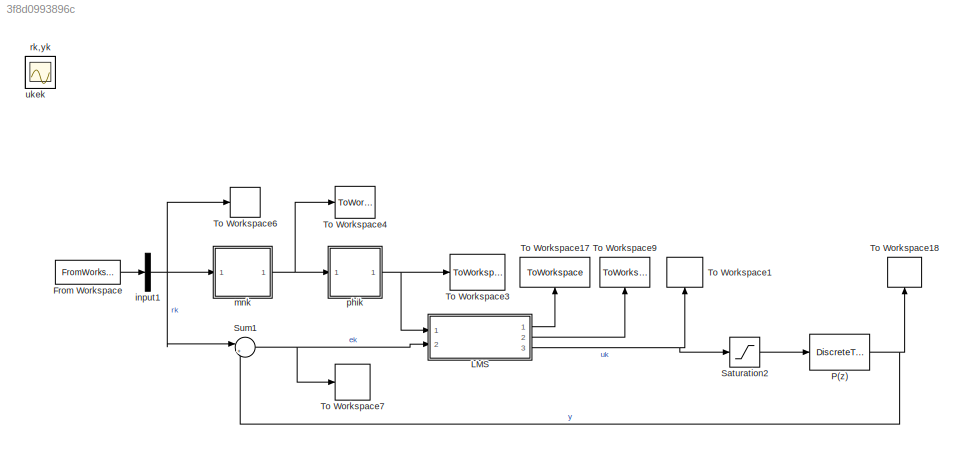
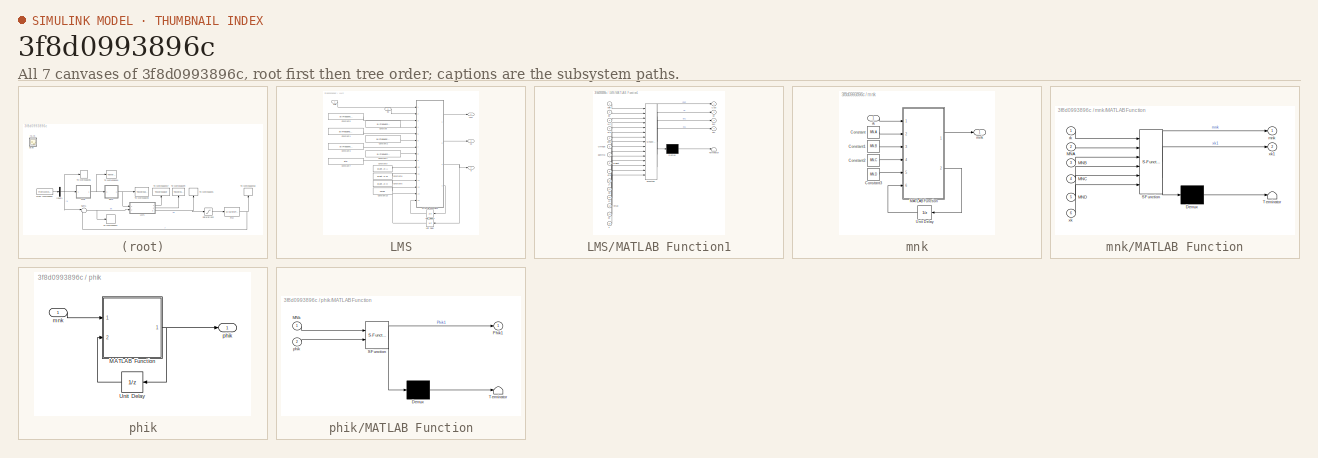
[diagram: thumbnail index - all 7 canvases of the model, root first then tree order]
MODEL slx_3f8d0993896c
KIND model
CONFIG AbsTol = auto
CONFIG EnableMultiTasking = off
CONFIG FixedStep = auto
CONFIG MaxStep = auto
CONFIG MinStep = auto
CONFIG RelTol = 1e-3
CONFIG SampleTimeConstraint = Unconstrained
CONFIG Solver = ode45
CONFIG SolverName = ode45
CONFIG StartTime = 0.0
CONFIG StopTime = Test_time
BLOCK [FromWorkspace] From Workspace
  SampleTime = Ts
  VariableName = inputdata
  ZeroCross = on
BLOCK [SubSystem] LMS
  Ports = [2, 3]
  RequestExecContextInheritance = off
  Variant = off
BLOCK [Constant] LMS/Constant
  Value = allFrequencyconstraints.w0
BLOCK [Constant] LMS/Constant1
  Value = allFrequencyconstraints.beta
BLOCK [Constant] LMS/Constant10
  Value = Vmax
BLOCK [Constant] LMS/Constant2
  Value = allFrequencyconstraints.Omega
BLOCK [Constant] LMS/Constant3
  Value = allFrequencyconstraints.gamma
BLOCK [Constant] LMS/Constant4
  Value = allFrequencyconstraints.weight
BLOCK [Constant] LMS/Constant5
  Value = allFrequencyconstraints.Nc
BLOCK [Constant] LMS/Constant6
  Value = plant.Jy.C
BLOCK [Constant] LMS/Constant7
  Value = eta
BLOCK [Constant] LMS/Constant8
  Value = plant.Jy.B
BLOCK [Constant] LMS/Constant9
  Value = plant.Jy.A
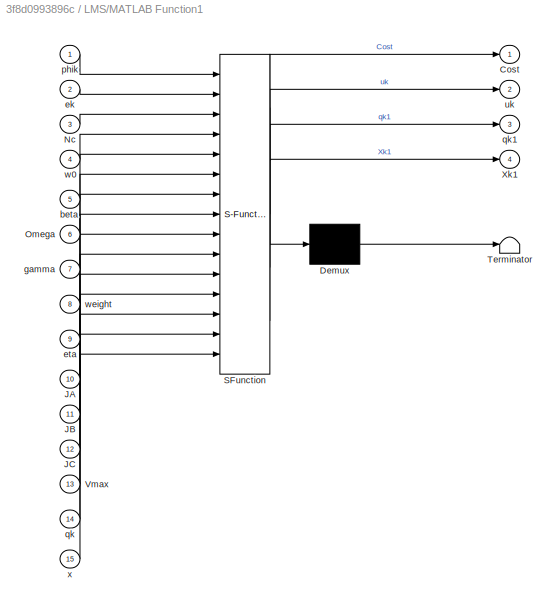
BLOCK [SubSystem] LMS/MATLAB Function1
  ErrorFcn = Stateflow.Translate.translate
  PermitHierarchicalResolution = ExplicitOnly
  Ports = [15, 4]
  RequestExecContextInheritance = off
  SFBlockType = MATLAB Function
  TreatAsAtomicUnit = on
  Variant = off
BLOCK [Demux] LMS/MATLAB Function1/ Demux 
  Outputs = 1
  Ports = [1, 1]
BLOCK [S-Function] LMS/MATLAB Function1/ SFunction 
  EnableBusSupport = on
  FunctionName = sf_sfun
  PortCounts = [15 5]
  Ports = [15, 5]
  SFcnIsStateOwnerBlock = off
  SFunctionDeploymentMode = off
  Tag = Stateflow S-Function Block_LMS_uk_Ccode 5
BLOCK [Terminator] LMS/MATLAB Function1/ Terminator 
BLOCK [Outport] LMS/MATLAB Function1/Cost
  IconDisplay = Port number
BLOCK [Inport] LMS/MATLAB Function1/JA
  IconDisplay = Port number
  Port = 10
BLOCK [Inport] LMS/MATLAB Function1/JB
  IconDisplay = Port number
  Port = 11
BLOCK [Inport] LMS/MATLAB Function1/JC
  IconDisplay = Port number
  Port = 12
BLOCK [Inport] LMS/MATLAB Function1/Nc
  IconDisplay = Port number
  Port = 3
BLOCK [Inport] LMS/MATLAB Function1/Omega
  IconDisplay = Port number
  Port = 6
BLOCK [Inport] LMS/MATLAB Function1/Vmax
  IconDisplay = Port number
  Port = 13
BLOCK [Outport] LMS/MATLAB Function1/Xk1
  IconDisplay = Port number
  Port = 4
BLOCK [Inport] LMS/MATLAB Function1/beta
  IconDisplay = Port number
  Port = 5
BLOCK [Inport] LMS/MATLAB Function1/ek
  IconDisplay = Port number
  Port = 2
BLOCK [Inport] LMS/MATLAB Function1/eta
  IconDisplay = Port number
  Port = 9
BLOCK [Inport] LMS/MATLAB Function1/gamma
  IconDisplay = Port number
  Port = 7
BLOCK [Inport] LMS/MATLAB Function1/phik
  IconDisplay = Port number
BLOCK [Inport] LMS/MATLAB Function1/qk
  IconDisplay = Port number
  Port = 14
BLOCK [Outport] LMS/MATLAB Function1/qk1
  IconDisplay = Port number
  Port = 3
BLOCK [Outport] LMS/MATLAB Function1/uk
  IconDisplay = Port number
  Port = 2
BLOCK [Inport] LMS/MATLAB Function1/w0
  IconDisplay = Port number
  Port = 4
BLOCK [Inport] LMS/MATLAB Function1/weight
  IconDisplay = Port number
  Port = 8
BLOCK [Inport] LMS/MATLAB Function1/x
  IconDisplay = Port number
  Port = 15
BLOCK [UnitDelay] LMS/Unit Delay
  InitialCondition = Qnum
  InputProcessing = Elements as channels (sample based)
  SampleTime = Ts
BLOCK [UnitDelay] LMS/Unit Delay1
  InitialCondition = zeros(Lq+4,1)
  InputProcessing = Elements as channels (sample based)
  SampleTime = -1
BLOCK [Outport] LMS/cost
  IconDisplay = Port number
BLOCK [Inport] LMS/ek
  IconDisplay = Port number
  Port = 2
BLOCK [Inport] LMS/phik
  IconDisplay = Port number
BLOCK [Outport] LMS/q
  IconDisplay = Port number
  Port = 2
BLOCK [Outport] LMS/uk
  IconDisplay = Port number
  Port = 3
BLOCK [DiscreteTransferFcn] P(z)
  Denominator = plant.v2p.den{1}
  InputPortMap = u0
  Numerator = plant.v2p.num{1}
  Ports = [1, 1]
  SampleTime = 0.001
BLOCK [Saturate] Saturation2
  InputPortMap = u0
  LowerLimit = -Vmax
  Ports = [1, 1]
  UpperLimit = Vmax
BLOCK [Sum] Sum1
  IconShape = round
  InputSameDT = off
  Inputs = |+-
  OutDataTypeStr = Inherit: Inherit via internal rule
  Ports = [2, 1]
  SaturateOnIntegerOverflow = off
BLOCK [ToWorkspace] To Workspace1
  MaxDataPoints = inf
  Ports = [1]
  SampleTime = -1
  VariableName = uk
BLOCK [ToWorkspace] To Workspace17
  MaxDataPoints = inf
  Ports = [1]
  SampleTime = -1
  VariableName = cost
BLOCK [ToWorkspace] To Workspace18
  MaxDataPoints = inf
  Ports = [1]
  SampleTime = -1
  VariableName = yk
BLOCK [ToWorkspace] To Workspace3
  MaxDataPoints = inf
  Ports = [1]
  SampleTime = -1
  VariableName = gkek
BLOCK [ToWorkspace] To Workspace4
  MaxDataPoints = inf
  Ports = [1]
  SampleTime = -1
  VariableName = mnk
BLOCK [ToWorkspace] To Workspace6
  MaxDataPoints = inf
  Ports = [1]
  SampleTime = -1
  VariableName = rk
BLOCK [ToWorkspace] To Workspace7
  MaxDataPoints = inf
  Ports = [1]
  SampleTime = -1
  VariableName = ek
BLOCK [ToWorkspace] To Workspace9
  MaxDataPoints = inf
  Ports = [1]
  SampleTime = -1
  VariableName = qk
BLOCK [Scope] ek
  IOType = viewer
  NumInputPorts = 1
  Ports = []
  ScopeSpecificationString = Simulink.scopes.TimeScopeBlockCfg('CurrentConfiguration', extmgr.ConfigurationSet(extmgr.Configuration('Core','General UI',true),extmgr.Configuration('Core','Source UI',true),extmgr.Configuration('Sources','WiredSimulink',true,'DataLoggingVariableName','ScopeData3'),extmgr.Configuration('Visuals','Time Domain',true,'SerializedDisplays',{struct('MinYLimReal','-0.18108','MaxYLimReal','0.21912','YLab...<+1475ch>
BLOCK [Demux] input1
  DisplayOption = bar
  Outputs = 1
  Ports = [1, 1]
BLOCK [SubSystem] mnk
  Ports = [1, 1]
  RequestExecContextInheritance = off
  Variant = off
BLOCK [Constant] mnk/Constant
  Value = MN.A
BLOCK [Constant] mnk/Constant1
  Value = MN.B
BLOCK [Constant] mnk/Constant2
  Value = MN.C
BLOCK [Constant] mnk/Constant3
  Value = MN.D
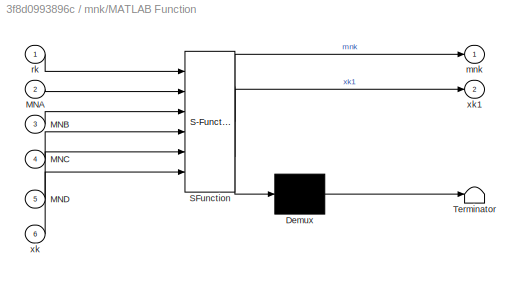
BLOCK [SubSystem] mnk/MATLAB Function
  ErrorFcn = Stateflow.Translate.translate
  PermitHierarchicalResolution = ExplicitOnly
  Ports = [6, 2]
  RequestExecContextInheritance = off
  SFBlockType = MATLAB Function
  TreatAsAtomicUnit = on
  Variant = off
BLOCK [Demux] mnk/MATLAB Function/ Demux 
  Outputs = 1
  Ports = [1, 1]
BLOCK [S-Function] mnk/MATLAB Function/ SFunction 
  EnableBusSupport = on
  FunctionName = sf_sfun
  PortCounts = [6 3]
  Ports = [6, 3]
  SFcnIsStateOwnerBlock = off
  SFunctionDeploymentMode = off
  Tag = Stateflow S-Function Block_LMS_uk_Ccode 1
BLOCK [Terminator] mnk/MATLAB Function/ Terminator 
BLOCK [Inport] mnk/MATLAB Function/MNA
  IconDisplay = Port number
  Port = 2
BLOCK [Inport] mnk/MATLAB Function/MNB
  IconDisplay = Port number
  Port = 3
BLOCK [Inport] mnk/MATLAB Function/MNC
  IconDisplay = Port number
  Port = 4
BLOCK [Inport] mnk/MATLAB Function/MND
  IconDisplay = Port number
  Port = 5
BLOCK [Outport] mnk/MATLAB Function/mnk
  IconDisplay = Port number
BLOCK [Inport] mnk/MATLAB Function/rk
  IconDisplay = Port number
BLOCK [Inport] mnk/MATLAB Function/xk
  IconDisplay = Port number
  Port = 6
BLOCK [Outport] mnk/MATLAB Function/xk1
  IconDisplay = Port number
  Port = 2
BLOCK [UnitDelay] mnk/Unit Delay
  InitialCondition = zeros(length(MN.A),1)
  InputProcessing = Elements as channels (sample based)
  SampleTime = -1
BLOCK [Outport] mnk/mnk
  IconDisplay = Port number
BLOCK [Inport] mnk/rk
  IconDisplay = Port number
BLOCK [SubSystem] phik
  Ports = [1, 1]
  RequestExecContextInheritance = off
  Variant = off
BLOCK [SubSystem] phik/MATLAB Function
  ErrorFcn = Stateflow.Translate.translate
  PermitHierarchicalResolution = ExplicitOnly
  Ports = [2, 1]
  RequestExecContextInheritance = off
  SFBlockType = MATLAB Function
  TreatAsAtomicUnit = on
  Variant = off
BLOCK [Demux] phik/MATLAB Function/ Demux 
  Outputs = 1
  Ports = [1, 1]
BLOCK [S-Function] phik/MATLAB Function/ SFunction 
  EnableBusSupport = on
  FunctionName = sf_sfun
  PortCounts = [2 2]
  Ports = [2, 2]
  SFcnIsStateOwnerBlock = off
  SFunctionDeploymentMode = off
  Tag = Stateflow S-Function Block_LMS_uk_Ccode 2
BLOCK [Terminator] phik/MATLAB Function/ Terminator 
BLOCK [Inport] phik/MATLAB Function/MNk
  IconDisplay = Port number
BLOCK [Outport] phik/MATLAB Function/Phik1
  IconDisplay = Port number
BLOCK [Inport] phik/MATLAB Function/phik
  IconDisplay = Port number
  Port = 2
BLOCK [UnitDelay] phik/Unit Delay
  InitialCondition = zeros(Lq,1)
  InputProcessing = Elements as channels (sample based)
  SampleTime = -1
BLOCK [Inport] phik/mnk
  IconDisplay = Port number
BLOCK [Outport] phik/phik
  IconDisplay = Port number
BLOCK [Scope] rk,yk
  IOType = viewer
  NumInputPorts = 1
  Ports = []
  ScopeSpecificationString = Simulink.scopes.TimeScopeBlockCfg('CurrentConfiguration', extmgr.ConfigurationSet(extmgr.Configuration('Core','General UI',true),extmgr.Configuration('Core','Source UI',true),extmgr.Configuration('Sources','WiredSimulink',true,'DataLoggingVariableName','ScopeData1'),extmgr.Configuration('Visuals','Time Domain',true,'SerializedDisplays',{struct('MinYLimReal','-62.5009','MaxYLimReal','62.5009','YLab...<+1496ch>
BLOCK [Scope] uk
  IOType = viewer
  NumInputPorts = 1
  Ports = []
  ScopeSpecificationString = Simulink.scopes.TimeScopeBlockCfg('CurrentConfiguration', extmgr.ConfigurationSet(extmgr.Configuration('Core','General UI',true),extmgr.Configuration('Core','Source UI',true),extmgr.Configuration('Sources','WiredSimulink',true,'DataLoggingVariableName','ScopeData2'),extmgr.Configuration('Visuals','Time Domain',true,'SerializedDisplays',{struct('MinYLimReal','-144.11387','MaxYLimReal','260.82223','...<+1443ch>
LINE From Workspace:1 -> input1:1
LINE LMS/Constant10:1 -> LMS/MATLAB Function1:13
LINE LMS/Constant1:1 -> LMS/MATLAB Function1:5
LINE LMS/Constant2:1 -> LMS/MATLAB Function1:6
LINE LMS/Constant3:1 -> LMS/MATLAB Function1:7
LINE LMS/Constant4:1 -> LMS/MATLAB Function1:8
LINE LMS/Constant5:1 -> LMS/MATLAB Function1:3
LINE LMS/Constant6:1 -> LMS/MATLAB Function1:12
LINE LMS/Constant7:1 -> LMS/MATLAB Function1:9
LINE LMS/Constant8:1 -> LMS/MATLAB Function1:11
LINE LMS/Constant9:1 -> LMS/MATLAB Function1:10
LINE LMS/Constant:1 -> LMS/MATLAB Function1:4
LINE LMS/MATLAB Function1:1 -> LMS/cost:1
LINE LMS/MATLAB Function1:2 -> LMS/uk:1
NET LMS/MATLAB Function1:3 -> LMS/Unit Delay:1, LMS/q:1
LINE LMS/MATLAB Function1:4 -> LMS/Unit Delay1:1
LINE LMS/Unit Delay1:1 -> LMS/MATLAB Function1:15
LINE LMS/Unit Delay:1 -> LMS/MATLAB Function1:14
LINE LMS/ek:1 -> LMS/MATLAB Function1:2
LINE LMS/phik:1 -> LMS/MATLAB Function1:1
LINE LMS:1 -> To Workspace17:1
LINE LMS:2 -> To Workspace9:1
NET LMS:3 -> Saturation2:1, To Workspace1:1
NET P(z):1 -> Sum1:2, To Workspace18:1
LINE Saturation2:1 -> P(z):1
NET Sum1:1 -> LMS:2, To Workspace7:1
NET input1:1 -> Sum1:1, To Workspace6:1, mnk:1
LINE mnk/Constant1:1 -> mnk/MATLAB Function:3
LINE mnk/Constant2:1 -> mnk/MATLAB Function:4
LINE mnk/Constant3:1 -> mnk/MATLAB Function:5
LINE mnk/Constant:1 -> mnk/MATLAB Function:2
LINE mnk/MATLAB Function:1 -> mnk/mnk:1
LINE mnk/MATLAB Function:2 -> mnk/Unit Delay:1
LINE mnk/Unit Delay:1 -> mnk/MATLAB Function:6
LINE mnk/rk:1 -> mnk/MATLAB Function:1
NET mnk:1 -> To Workspace4:1, phik:1
NET phik/MATLAB Function:1 -> phik/Unit Delay:1, phik/phik:1
LINE phik/Unit Delay:1 -> phik/MATLAB Function:2
LINE phik/mnk:1 -> phik/MATLAB Function:1
NET phik:1 -> LMS:1, To Workspace3:1
note: NET lines group one-source signal fan-out (src -> all destinations, sorted); 1:1 wires keep LINE
CHART mnk/MATLAB Function states=1 transitions=1
  STATE_LABEL 'eML_blk_kernel()'
  STATE_LABEL "SCRIPT:\nfunction [mnk,xk1] = MNk(rk,MNA,MNB,MNC,MND,xk)\n\n    xk1 = MNA*xk + MNB*rk;\n    mnk = MNC.'*xk + MND*rk;\n\nend\n"
CHART phik/MATLAB Function states=1 transitions=1
  STATE_LABEL 'eML_blk_kernel()'
  STATE_LABEL 'SCRIPT:\nfunction Phik1 = Phik(MNk,phik)\n\n    L = length(phik)-1;\n    Phik1 = [MNk; reshape(phik(1:L),[L 1])];\n    \nend\n'
CHART LMS/MATLAB Function1 states=1 transitions=1
  STATE_LABEL 'eML_blk_kernel()'
  STATE_LABEL "SCRIPT:\nfunction [Cost,uk,qk1,Xk1] = lms(phik,ek,Nc,w0,beta,Omega,gamma,weight,eta,JA,JB,JC,Vmax,qk,x)\n\nfit = zeros(Nc,1); % every out of constraints\ncost = w0*ek*ek/2; % function f and the min f\n\ndeltaJ = -1 * w0 * ek * phik;\n\nfor i = 1:Nc\n    onebeta = beta(:,i);\n    oneOmega = Omega(:,:,i);\n    onegamma = gamma(i);\n    oneweight = weight(i);\n    g = qk.'*oneOmega*qk + onebeta.'*qk + onegamma;\n ...<+1591ch>"
